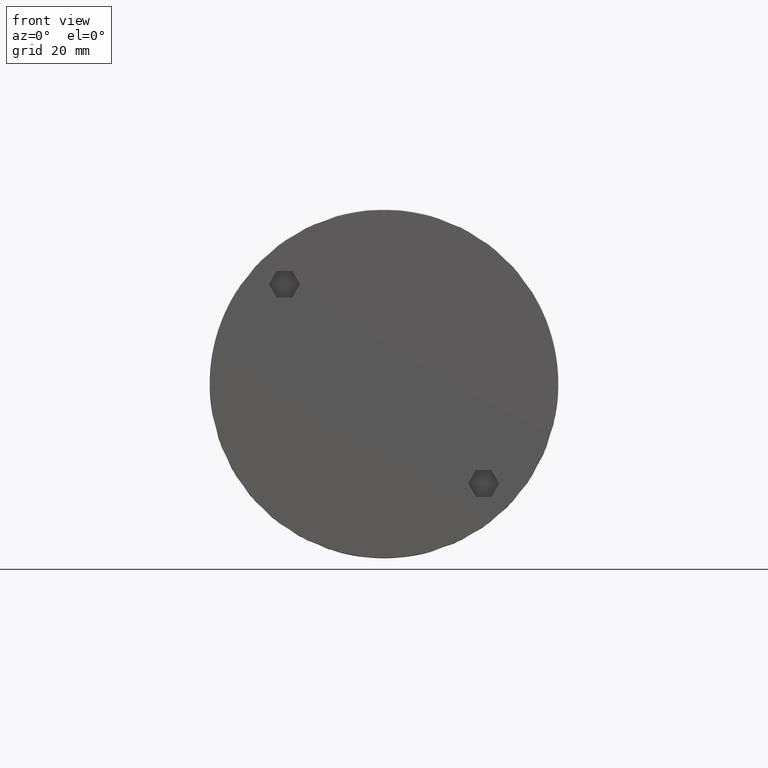
[diagram: clean part render]
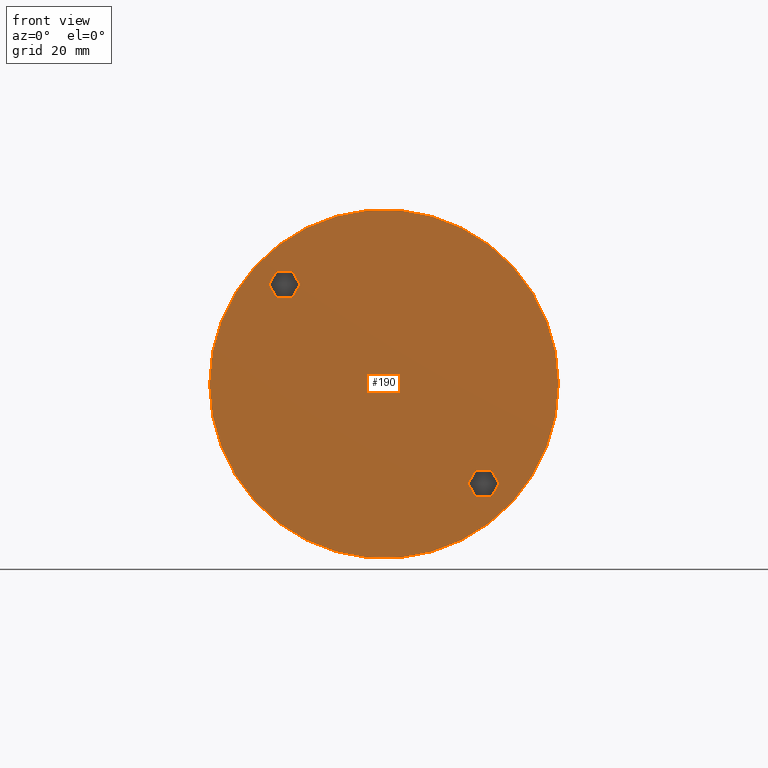
[diagram: same view with one face highlighted and labeled with its STEP entity id]
A machine part, front view. The second image highlights one B-rep face of the part: STEP entity #190.
In plain terms, the highlighted planar face has unit normal (0, 1, 0).
Its self-contained STEP definition (entity closure, byte-faithful):
#74=CARTESIAN_POINT('',(1.0,0.0,1.0));
#75=DIRECTION('',(0.0,1.0,0.0));
#76=DIRECTION('',(0.0,0.0,1.0));
#77=AXIS2_PLACEMENT_3D('',#74,#75,#76);
#78=PLANE('',#77);
#79=CARTESIAN_POINT('',(-1.750000000000000,0.0,2.143132E-016));
#80=VERTEX_POINT('',#79);
#81=CARTESIAN_POINT('',(0.0,0.0,0.0));
#82=DIRECTION('',(0.0,-1.0,0.0));
#83=DIRECTION('',(1.0,0.0,0.0));
#84=AXIS2_PLACEMENT_3D('',#81,#82,#83);
#85=CIRCLE('',#84,1.750000000000000);
#86=EDGE_CURVE('',#80,#80,#85,.T.);
#87=ORIENTED_EDGE('',*,*,#86,.T.);
#88=EDGE_LOOP('',(#87));
#89=FACE_OUTER_BOUND('',#88,.T.);
#90=CARTESIAN_POINT('',(-1.155884572681199,3.309946E-018,1.0));
#91=VERTEX_POINT('',#90);
#92=CARTESIAN_POINT('',(-1.077942286340600,-1.486223E-017,1.135000000000000));
#93=VERTEX_POINT('',#92);
#94=CARTESIAN_POINT('',(-1.155884572681199,3.309946E-018,1.000000000000000));
#95=DIRECTION('',(0.500000000000000,-1.165746E-016,0.866025403784439));
#96=VECTOR('',#95,0.155884572681199);
#97=LINE('',#94,#96);
#98=EDGE_CURVE('',#91,#93,#97,.T.);
#99=ORIENTED_EDGE('',*,*,#98,.T.);
#100=CARTESIAN_POINT('',(-0.922057713659401,-5.120658E-017,1.135000000000000));
#101=VERTEX_POINT('',#100);
#102=CARTESIAN_POINT('',(-1.077942286340600,-1.486223E-017,1.135000000000000));
#103=DIRECTION('',(1.0,0.0,0.0));
#104=VECTOR('',#103,0.155884572681199);
#105=LINE('',#102,#104);
#106=EDGE_CURVE('',#93,#101,#105,.T.);
#107=ORIENTED_EDGE('',*,*,#106,.T.);
#108=CARTESIAN_POINT('',(-0.844115427318801,-6.937876E-017,1.0));
#109=VERTEX_POINT('',#108);
#110=CARTESIAN_POINT('',(-0.922057713659401,-5.120658E-017,1.135000000000000));
#111=DIRECTION('',(0.500000000000000,-1.165746E-016,-0.866025403784439));
#112=VECTOR('',#111,0.155884572681199);
#113=LINE('',#110,#112);
#114=EDGE_CURVE('',#101,#109,#113,.T.);
#115=ORIENTED_EDGE('',*,*,#114,.T.);
#116=CARTESIAN_POINT('',(-0.922057713659401,-5.120658E-017,0.865000000000000));
#117=VERTEX_POINT('',#116);
#118=CARTESIAN_POINT('',(-0.844115427318801,-6.937876E-017,1.0));
#119=DIRECTION('',(-0.500000000000000,1.165746E-016,-0.866025403784439));
#120=VECTOR('',#119,0.155884572681199);
#121=LINE('',#118,#120);
#122=EDGE_CURVE('',#109,#117,#121,.T.);
#123=ORIENTED_EDGE('',*,*,#122,.T.);
#124=CARTESIAN_POINT('',(-1.077942286340600,-1.486223E-017,0.865000000000000));
#125=VERTEX_POINT('',#124);
#126=CARTESIAN_POINT('',(-0.922057713659401,-5.120658E-017,0.865000000000000));
#127=DIRECTION('',(-1.0,0.0,0.0));
#128=VECTOR('',#127,0.155884572681199);
#129=LINE('',#126,#128);
#130=EDGE_CURVE('',#117,#125,#129,.T.);
#131=ORIENTED_EDGE('',*,*,#130,.T.);
#132=CARTESIAN_POINT('',(-1.077942286340600,-1.486223E-017,0.865000000000000));
#133=DIRECTION('',(-0.500000000000000,1.165746E-016,0.866025403784439));
#134=VECTOR('',#133,0.155884572681199);
#135=LINE('',#132,#134);
#136=EDGE_CURVE('',#125,#91,#135,.T.);
#137=ORIENTED_EDGE('',*,*,#136,.T.);
#138=EDGE_LOOP('',(#99,#107,#115,#123,#131,#137));
#139=FACE_BOUND('',#138,.T.);
#140=CARTESIAN_POINT('',(0.844115427318801,3.309946E-018,-1.0));
#141=VERTEX_POINT('',#140);
#142=CARTESIAN_POINT('',(0.922057713659400,-1.486223E-017,-0.865000000000000));
#143=VERTEX_POINT('',#142);
#144=CARTESIAN_POINT('',(0.844115427318801,3.309946E-018,-1.0));
#145=DIRECTION('',(0.500000000000000,-1.165746E-016,0.866025403784439));
#146=VECTOR('',#145,0.155884572681199);
#147=LINE('',#144,#146);
#148=EDGE_CURVE('',#141,#143,#147,.T.);
#149=ORIENTED_EDGE('',*,*,#148,.T.);
#150=CARTESIAN_POINT('',(1.077942286340599,-5.120658E-017,-0.865000000000000));
#151=VERTEX_POINT('',#150);
#152=CARTESIAN_POINT('',(0.922057713659400,-1.486223E-017,-0.865000000000000));
#153=DIRECTION('',(1.0,0.0,0.0));
#154=VECTOR('',#153,0.155884572681199);
#155=LINE('',#152,#154);
#156=EDGE_CURVE('',#143,#151,#155,.T.);
#157=ORIENTED_EDGE('',*,*,#156,.T.);
#158=CARTESIAN_POINT('',(1.155884572681199,-6.937876E-017,-1.0));
#159=VERTEX_POINT('',#158);
#160=CARTESIAN_POINT('',(1.077942286340599,-5.120658E-017,-0.865000000000000));
#161=DIRECTION('',(0.500000000000000,-1.165746E-016,-0.866025403784439));
#162=VECTOR('',#161,0.155884572681199);
#163=LINE('',#160,#162);
#164=EDGE_CURVE('',#151,#159,#163,.T.);
#165=ORIENTED_EDGE('',*,*,#164,.T.);
#166=CARTESIAN_POINT('',(1.077942286340600,-5.120658E-017,-1.135000000000000));
#167=VERTEX_POINT('',#166);
#168=CARTESIAN_POINT('',(1.155884572681199,-6.937876E-017,-1.0));
#169=DIRECTION('',(-0.500000000000000,1.165746E-016,-0.866025403784439));
#170=VECTOR('',#169,0.155884572681199);
#171=LINE('',#168,#170);
#172=EDGE_CURVE('',#159,#167,#171,.T.);
#173=ORIENTED_EDGE('',*,*,#172,.T.);
#174=CARTESIAN_POINT('',(0.922057713659401,-1.486223E-017,-1.135000000000000));
#175=VERTEX_POINT('',#174);
#176=CARTESIAN_POINT('',(1.077942286340600,-5.120658E-017,-1.135000000000000));
#177=DIRECTION('',(-1.0,0.0,0.0));
#178=VECTOR('',#177,0.155884572681199);
#179=LINE('',#176,#178);
#180=EDGE_CURVE('',#167,#175,#179,.T.);
#181=ORIENTED_EDGE('',*,*,#180,.T.);
#182=CARTESIAN_POINT('',(0.922057713659401,-1.486223E-017,-1.135000000000000));
#183=DIRECTION('',(-0.500000000000001,1.165746E-016,0.866025403784438));
#184=VECTOR('',#183,0.155884572681199);
#185=LINE('',#182,#184);
#186=EDGE_CURVE('',#175,#141,#185,.T.);
#187=ORIENTED_EDGE('',*,*,#186,.T.);
#188=EDGE_LOOP('',(#149,#157,#165,#173,#181,#187));
#189=FACE_BOUND('',#188,.T.);
#190=ADVANCED_FACE('',(#89,#139,#189),#78,.F.);